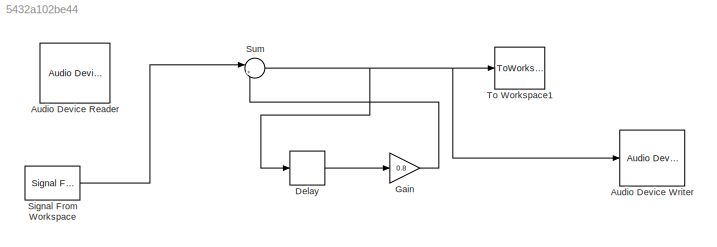
MODEL slx_5432a102be44
KIND model
CONFIG AbsTol = auto
CONFIG EnableMultiTasking = off
CONFIG FixedStep = auto
CONFIG MaxStep = auto
CONFIG MinStep = auto
CONFIG RelTol = 1e-3
CONFIG SampleTimeConstraint = Unconstrained
CONFIG SolverName = VariableStepAuto
CONFIG StartTime = 0.0
CONFIG StopTime = inf
BLOCK [Reference] Audio Device Reader  REF=audiosources/Audio Device
Reader
  SourceBlock = audiosources/Audio Device\nReader
  SourceType = Audio Device Reader
BLOCK [Reference] Audio Device Writer  REF=dspsnks4/Audio Device
Writer
  LibrarySourceBlock = audiosinks/Audio Device\nWriter
  SourceBlock = dspsnks4/Audio Device\nWriter
  SourceType = Audio Device Writer
BLOCK [Delay] Delay
  DelayLength = 100
  InitialCondition = 0
  InputPortMap = u0
BLOCK [Gain] Gain
  Gain = 0.8
BLOCK [Reference] Signal From Workspace  REF=dspsrcs4/Signal From
Workspace
  SourceBlock = dspsrcs4/Signal From\nWorkspace
  SourceType = Signal From Workspace
BLOCK [Sum] Sum
  Inputs = |++
BLOCK [ToWorkspace] To Workspace1
  MaxDataPoints = inf
  SampleTime = -1
  Save2DSignal = 2-D array (concatenate along first dimension)
  VariableName = Echo
LINE Delay:1 -> Gain:1
LINE Gain:1 -> Sum:2
LINE Signal From Workspace:1 -> Sum:1
NET Sum:1 -> Audio Device Writer:1, Delay:1, To Workspace1:1
note: NET lines group one-source signal fan-out (src -> all destinations, sorted); 1:1 wires keep LINE
